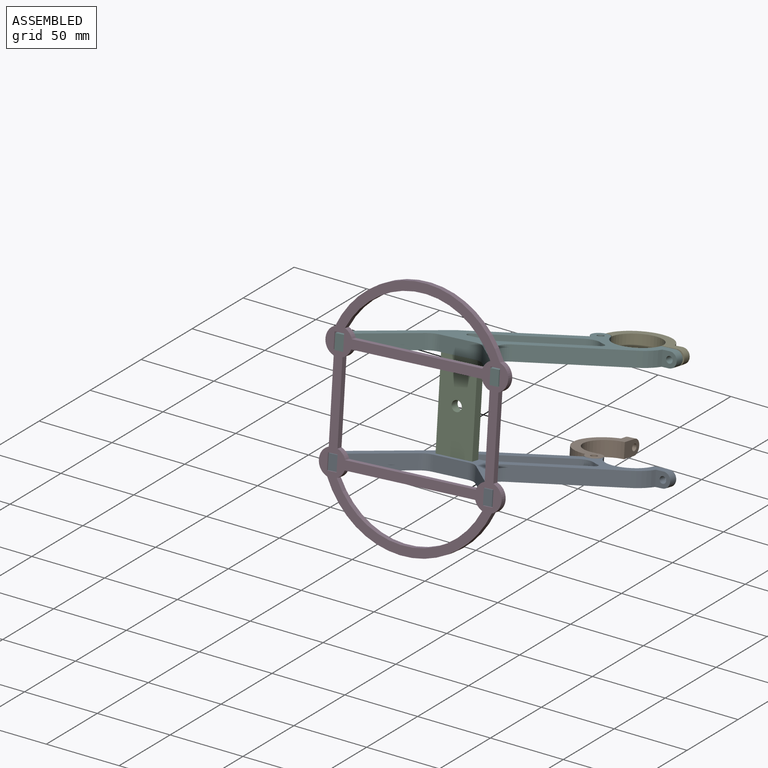
[diagram: assembled view]
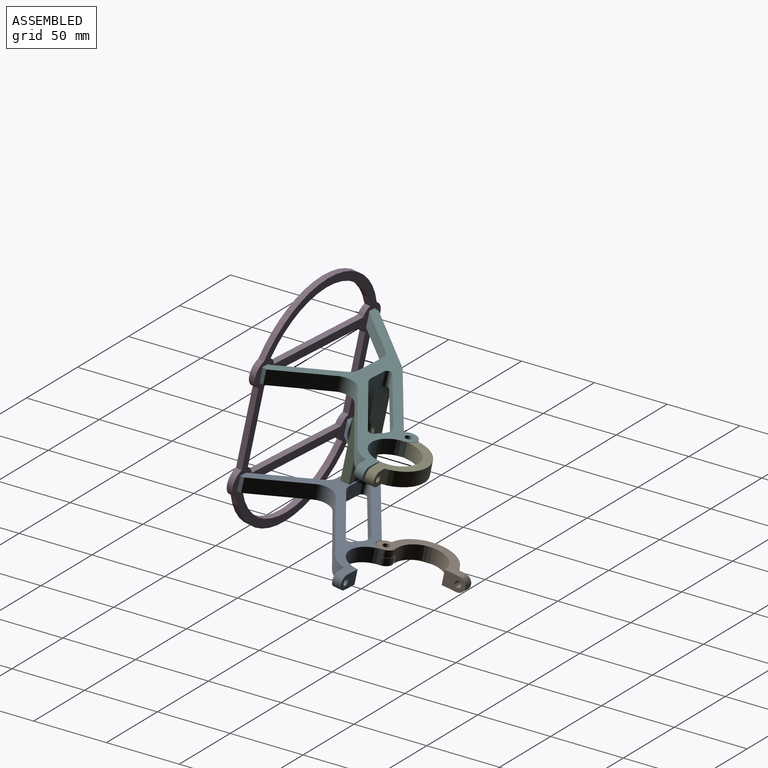
[diagram: assembled view, second angle]
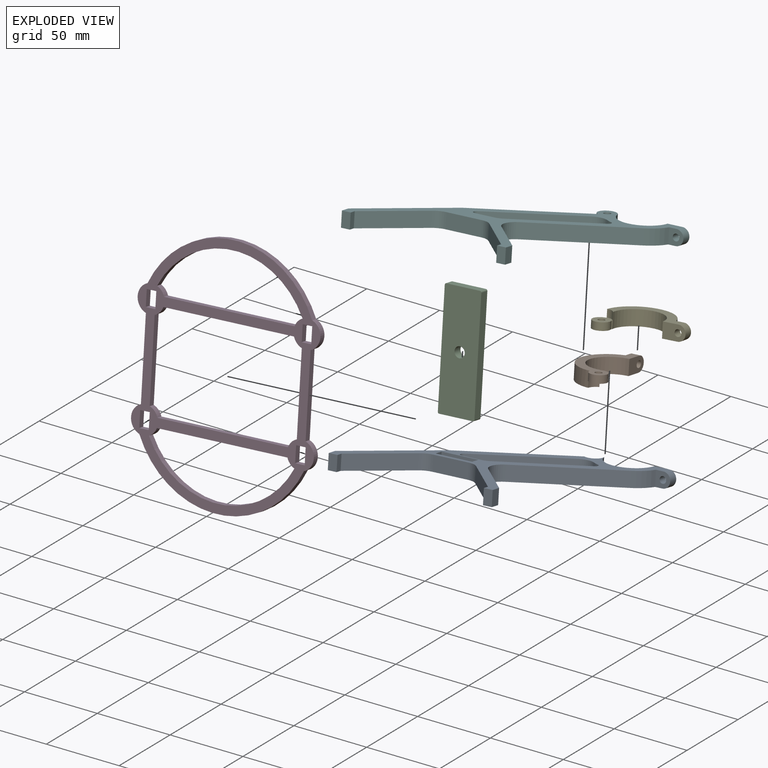
[diagram: exploded view]
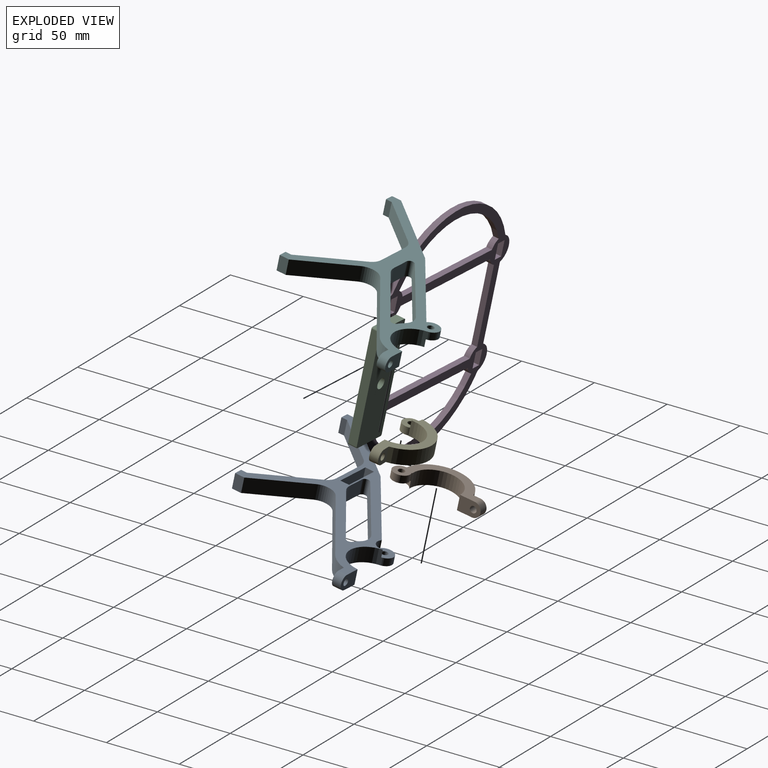
[diagram: exploded view, second angle]
ASSEMBLY  parts=6 mates=5
PART A: 42 faces, bbox 162.3x110x10 mm
  f0: cylinder r=6mm len=11.77mm, axis (0,0,-1), area 117.4mm2, adj f15,f16,f32,f41
  f1: cylinder r=2.25mm len=5mm, axis (0,0,-1), area 70.7mm2, adj f32,f41
  f2: plane 15.17x10mm, normal (0,1,0), area 125mm2, adj f15,f31,f32,f33,f34
  f3: plane 12.88x10mm, normal (0,1,0), area 128.8mm2, adj f4,f29,f31,f32
  f4: cylinder r=2.5mm len=10mm, axis (0,0,-1), area 63mm2, adj f3,f5,f31,f32
  f5: plane 51.81x36.97mm, normal (0.58,-0.81,0), area 636.4mm2, adj f4,f6,f31,f32
  f6: cylinder r=10mm len=11.46mm, axis (0,0,-1), area 122.1mm2, adj f5,f7,f31,f32
  f7: cylinder r=22.3mm len=10mm, axis (0,0,-1), area 47.4mm2, adj f6,f8,f31,f32
  f8: cylinder r=2.5mm len=10mm, axis (0,0,-1), area 53.7mm2, adj f7,f9,f31,f32
  f9: plane 47.87x33.21mm, normal (-0.57,0.82,0), area 582.6mm2, adj f8,f29,f31,f32
  f10: plane 30.19x28.13mm, normal (0.73,0.68,0), area 412.6mm2, adj f11,f30,f31,f32
  f11: cylinder r=10mm len=15.03mm, axis (0,0,-1), area 171.4mm2, adj f10,f12,f31,f32
  f12: plane 58.15x40.34mm, normal (0.57,-0.82,0), area 707.7mm2, adj f11,f13,f31,f32
  f13: cylinder r=22mm len=12.08mm, axis (0,0,-1), area 151.4mm2, adj f12,f14,f31,f32
  f14: plane 10x10mm, normal (0,-1,0), area 73.4mm2, adj f13,f31,f32,f33,f34
  f15: cylinder r=16mm len=31.39mm, axis (0,0,-1), area 458.5mm2, adj f0,f2,f31,f32,f40
  f16: plane 61.63x43.98mm, normal (-0.58,0.81,0), area 757.2mm2, adj f0,f17,f31,f32,f40
  f17: cylinder r=5mm len=10mm, axis (0,0,-1), area 10mm2, adj f16,f18,f31,f32
  f18: plane 47.8x44.54mm, normal (-0.73,0.68,0), area 653.4mm2, adj f17,f19,f31,f32
  f19: plane 10x6.36mm, normal (-1,0,0), area 63.6mm2, adj f18,f20,f31,f32
  f20: plane 10x6mm, normal (0,-1,0), area 60mm2, adj f19,f21,f31,f32
  f21: plane 10x4mm, normal (1,0,0), area 40mm2, adj f20,f22,f31,f32
  f22: plane 32.82x30.58mm, normal (0.73,-0.68,0), area 448.5mm2, adj f21,f23,f31,f32
  f23: cylinder r=10mm len=10mm, axis (0,0,-1), area 82.1mm2, adj f22,f24,f31,f32
  f24: plane 24.21x10mm, normal (0,-1,0), area 242.1mm2, adj f23,f25,f31,f32
  f25: cylinder r=10mm len=10mm, axis (0,0,-1), area 82.1mm2, adj f24,f26,f31,f32
  f26: plane 32.82x30.58mm, normal (-0.73,-0.68,0), area 448.5mm2, adj f25,f27,f31,f32
  f27: plane 10x4mm, normal (-1,0,0), area 40mm2, adj f26,f28,f31,f32
  f28: plane 10x6mm, normal (0,-1,0), area 60mm2, adj f27,f30,f31,f32
  f29: cylinder r=10mm len=10mm, axis (0,0,-1), area 60.7mm2, adj f3,f9,f31,f32
  f30: plane 10x6.36mm, normal (1,0,0), area 63.6mm2, adj f10,f28,f31,f32
  f31: plane 157.26x110mm, normal (0,0,1), area 2203.6mm2, adj f2,f3,f4,f5,f6,f7,f8,f9
  f32: plane 157.26x110mm, normal (0,0,-1), area 2450.8mm2, adj f0,f1,f2,f3,f4,f5,f6,f7
  f33: cylinder r=2.25mm len=6mm, axis (0,-1,0), area 84.8mm2, adj f2,f14
  f34: cylinder r=5mm len=10mm, axis (0,-1,0), area 94.2mm2, adj f2,f14,f31,f32
  f35: plane 8x6mm, normal (1,0,0), area 48mm2, adj f31,f36,f38,f39
  f36: plane 25x8mm, normal (0,1,0), area 200mm2, adj f31,f35,f37,f39
  f37: plane 8x6mm, normal (-1,0,0), area 48mm2, adj f31,f36,f38,f39
  f38: plane 25x8mm, normal (0,-1,0), area 200mm2, adj f31,f35,f37,f39
  f39: plane 25x6mm, normal (0,0,1), area 150mm2, adj f35,f36,f37,f38
  f40: cylinder r=6mm len=9mm, axis (0,0,1), area 71.1mm2, adj f15,f16,f31,f41
  f41: plane 12x12mm, normal (0,0,1), area 97.2mm2, adj f0,f1,f40
PART B: 13 faces, bbox 58x33.7x10 mm
  f0: plane 15.11x10mm, normal (0.09,-1,0), area 125mm2, adj f1,f5,f8,f11,f12
  f1: plane 53x33.69mm, normal (0,0,1), area 469mm2, adj f0,f2,f3,f4,f5,f6,f7,f12
  f2: plane 5x0.44mm, normal (0.49,-0.87,0), area 2.5mm2, adj f1,f3,f5,f10
  f3: cylinder r=5.75mm len=11.5mm, axis (0,0,-1), area 146.2mm2, adj f1,f2,f7,f10
  f4: cylinder r=2.25mm len=5mm, axis (0,0,-1), area 70.7mm2, adj f1,f10
  f5: cylinder r=16mm len=31.94mm, axis (0,0,-1), area 517.5mm2, adj f0,f1,f2,f8,f9
  f6: plane 10x9.96mm, normal (-0.09,1,0), area 73.4mm2, adj f1,f7,f8,f11,f12
  f7: cylinder r=22mm len=42.56mm, axis (0,0,-1), area 611.2mm2, adj f1,f3,f6,f8,f9,f10
  f8: plane 48.07x24.87mm, normal (0,0,-1), area 377.5mm2, adj f0,f5,f6,f7,f9,f12
  f9: cylinder r=6.25mm len=6.26mm, axis (0,0,-1), area 37.1mm2, adj f5,f7,f8,f10
  f10: plane 12x11.5mm, normal (0,0,-1), area 91.5mm2, adj f2,f3,f4,f7,f9
  f11: cylinder r=2.25mm len=6.37mm, axis (-0.09,1,0), area 84.8mm2, adj f0,f6
  f12: cylinder r=5mm len=10mm, axis (-0.09,1,0), area 94.2mm2, adj f0,f1,f6,f8
PART C: 11 faces, bbox 76x25x6 mm
  f0: plane 74x6mm, normal (0,1,0), area 444mm2, adj f5,f6,f7,f10
  f1: plane 23x6mm, normal (-1,0,0), area 138mm2, adj f5,f6,f7,f8
  f2: plane 74x6mm, normal (0,-1,0), area 444mm2, adj f5,f6,f8,f9
  f3: cylinder r=3.5mm len=7mm, axis (0,0,-1), area 131.9mm2, adj f5,f6
  f4: plane 23x6mm, normal (1,0,0), area 138mm2, adj f5,f6,f9,f10
  f5: plane 76x25mm, normal (0,0,1), area 1860.7mm2, adj f0,f1,f2,f3,f4,f7,f8,f9
  f6: plane 76x25mm, normal (0,0,-1), area 1860.7mm2, adj f0,f1,f2,f3,f4,f7,f8,f9
  f7: cylinder r=1mm len=6mm, axis (0,0,1), area 9.4mm2, adj f0,f1,f5,f6
  f8: cylinder r=1mm len=6mm, axis (0,0,-1), area 9.4mm2, adj f1,f2,f5,f6
  f9: cylinder r=1mm len=6mm, axis (0,0,1), area 9.4mm2, adj f2,f4,f5,f6
  f10: cylinder r=1mm len=6mm, axis (0,0,-1), area 9.4mm2, adj f0,f4,f5,f6
PART D: 42 faces, bbox 160x124.8x4 mm
  f0: plane 10.5x4mm, normal (0,1,0), area 42mm2, adj f1,f12,f13,f14
  f1: plane 6.5x4mm, normal (1,0,0), area 26mm2, adj f0,f2,f13,f14
  f2: plane 10.5x4mm, normal (0,-1,0), area 42mm2, adj f1,f12,f13,f14
  f3: plane 53.16x4mm, normal (0,1,0), area 212.6mm2, adj f4,f13,f14,f18
  f4: cylinder r=9.17mm len=17.34mm, axis (0,0,-1), area 90.8mm2, adj f3,f5,f13,f14
  f5: cylinder r=61.89mm len=112.5mm, axis (0,0,-1), area 564.7mm2, adj f4,f13,f14,f30
  f6: cylinder r=55.89mm len=99.37mm, axis (0,0,-1), area 489.7mm2, adj f7,f13,f14,f31
  f7: cylinder r=9.17mm len=5.45mm, axis (0,0,-1), area 30.8mm2, adj f6,f8,f13,f14
  f8: plane 89.16x4mm, normal (-1,0,0), area 356.6mm2, adj f7,f13,f14,f31
  f9: plane 89.16x4mm, normal (1,0,0), area 356.6mm2, adj f10,f13,f14,f32
  f10: cylinder r=9.17mm len=5.67mm, axis (0,0,-1), area 33.2mm2, adj f9,f11,f13,f14
  f11: plane 53.16x4mm, normal (0,-1,0), area 212.6mm2, adj f10,f13,f14,f24
  f12: plane 6.5x4mm, normal (-1,0,0), area 26mm2, adj f0,f2,f13,f14
  f13: plane 160x124.85mm, normal (0,0,1), area 4047.3mm2, adj f0,f1,f2,f3,f4,f5,f6,f7
  f14: plane 160x124.85mm, normal (0,0,-1), area 4047.3mm2, adj f0,f1,f2,f3,f4,f5,f6,f7
  f15: plane 10.5x4mm, normal (0,1,0), area 42mm2, adj f13,f14,f16,f25
  f16: plane 6.5x4mm, normal (-1,0,0), area 26mm2, adj f13,f14,f15,f17
  f17: plane 10.5x4mm, normal (0,-1,0), area 42mm2, adj f13,f14,f16,f25
  f18: cylinder r=9.17mm len=17.34mm, axis (0,0,-1), area 90.8mm2, adj f3,f13,f14,f19
  f19: cylinder r=61.89mm len=112.5mm, axis (0,0,-1), area 564.7mm2, adj f13,f14,f18,f38
  f20: cylinder r=55.89mm len=99.37mm, axis (0,0,-1), area 489.7mm2, adj f13,f14,f21,f39
  f21: cylinder r=9.17mm len=5.45mm, axis (0,0,-1), area 30.8mm2, adj f13,f14,f20,f22
  f22: plane 89.16x4mm, normal (1,0,0), area 356.6mm2, adj f13,f14,f21,f39
  f23: plane 89.16x4mm, normal (-1,0,0), area 356.6mm2, adj f13,f14,f24,f40
  f24: cylinder r=9.17mm len=5.67mm, axis (0,0,-1), area 33.2mm2, adj f11,f13,f14,f23
  f25: plane 6.5x4mm, normal (1,0,0), area 26mm2, adj f13,f14,f15,f17
  f26: plane 10.5x4mm, normal (0,-1,0), area 42mm2, adj f13,f14,f27,f34
  f27: plane 6.5x4mm, normal (1,0,0), area 26mm2, adj f13,f14,f26,f28
  f28: plane 10.5x4mm, normal (0,1,0), area 42mm2, adj f13,f14,f27,f34
  f29: plane 53.16x4mm, normal (0,-1,0), area 212.6mm2, adj f13,f14,f30,f38
  f30: cylinder r=9.17mm len=17.34mm, axis (0,0,-1), area 90.8mm2, adj f5,f13,f14,f29
  f31: cylinder r=9.17mm len=5.45mm, axis (0,0,-1), area 30.8mm2, adj f6,f8,f13,f14
  f32: cylinder r=9.17mm len=5.67mm, axis (0,0,-1), area 33.2mm2, adj f9,f13,f14,f33
  f33: plane 53.16x4mm, normal (0,1,0), area 212.6mm2, adj f13,f14,f32,f40
  f34: plane 6.5x4mm, normal (-1,0,0), area 26mm2, adj f13,f14,f26,f28
  f35: plane 10.5x4mm, normal (0,-1,0), area 42mm2, adj f13,f14,f36,f41
  f36: plane 6.5x4mm, normal (-1,0,0), area 26mm2, adj f13,f14,f35,f37
  f37: plane 10.5x4mm, normal (0,1,0), area 42mm2, adj f13,f14,f36,f41
  f38: cylinder r=9.17mm len=17.34mm, axis (0,0,-1), area 90.8mm2, adj f13,f14,f19,f29
  f39: cylinder r=9.17mm len=5.45mm, axis (0,0,-1), area 30.8mm2, adj f13,f14,f20,f22
  f40: cylinder r=9.17mm len=5.67mm, axis (0,0,-1), area 33.2mm2, adj f13,f14,f23,f33
  f41: plane 6.5x4mm, normal (1,0,0), area 26mm2, adj f13,f14,f35,f37
PART E: 13 faces, bbox 58x33.7x10 mm
  f0: plane 15.11x10mm, normal (0.09,-1,0), area 125mm2, adj f1,f5,f8,f11,f12
  f1: plane 53x33.69mm, normal (0,0,-1), area 469mm2, adj f0,f2,f3,f4,f5,f6,f7,f12
  f2: plane 5x0.44mm, normal (0.49,-0.87,0), area 2.5mm2, adj f1,f3,f5,f10
  f3: cylinder r=5.75mm len=11.5mm, axis (0,0,1), area 146.2mm2, adj f1,f2,f7,f10
  f4: cylinder r=2.25mm len=5mm, axis (0,0,1), area 70.7mm2, adj f1,f10
  f5: cylinder r=16mm len=31.94mm, axis (0,0,1), area 517.5mm2, adj f0,f1,f2,f8,f9
  f6: plane 10x9.96mm, normal (-0.09,1,0), area 73.4mm2, adj f1,f7,f8,f11,f12
  f7: cylinder r=22mm len=42.56mm, axis (0,0,1), area 611.2mm2, adj f1,f3,f6,f8,f9,f10
  f8: plane 48.07x24.87mm, normal (0,0,1), area 377.5mm2, adj f0,f5,f6,f7,f9,f12
  f9: cylinder r=6.25mm len=6.26mm, axis (0,0,1), area 37.1mm2, adj f5,f7,f8,f10
  f10: plane 12x11.5mm, normal (0,0,1), area 91.5mm2, adj f2,f3,f4,f7,f9
  f11: cylinder r=2.25mm len=6.37mm, axis (-0.09,1,0), area 84.8mm2, adj f0,f6
  f12: cylinder r=5mm len=10mm, axis (-0.09,1,0), area 94.2mm2, adj f0,f1,f6,f8
PART F: 42 faces, bbox 162.3x110x10 mm
  f0: cylinder r=6mm len=11.77mm, axis (0,0,1), area 117.4mm2, adj f15,f16,f32,f41
  f1: cylinder r=2.25mm len=5mm, axis (0,0,1), area 70.7mm2, adj f32,f41
  f2: plane 15.17x10mm, normal (0,1,0), area 125mm2, adj f15,f31,f32,f33,f34
  f3: plane 12.88x10mm, normal (0,1,0), area 128.8mm2, adj f4,f29,f31,f32
  f4: cylinder r=2.5mm len=10mm, axis (0,0,1), area 63mm2, adj f3,f5,f31,f32
  f5: plane 51.81x36.97mm, normal (0.58,-0.81,0), area 636.4mm2, adj f4,f6,f31,f32
  f6: cylinder r=10mm len=11.46mm, axis (0,0,1), area 122.1mm2, adj f5,f7,f31,f32
  f7: cylinder r=22.3mm len=10mm, axis (0,0,1), area 47.4mm2, adj f6,f8,f31,f32
  f8: cylinder r=2.5mm len=10mm, axis (0,0,1), area 53.7mm2, adj f7,f9,f31,f32
  f9: plane 47.87x33.21mm, normal (-0.57,0.82,0), area 582.6mm2, adj f8,f29,f31,f32
  f10: plane 30.19x28.13mm, normal (0.73,0.68,0), area 412.6mm2, adj f11,f30,f31,f32
  f11: cylinder r=10mm len=15.03mm, axis (0,0,1), area 171.4mm2, adj f10,f12,f31,f32
  f12: plane 58.15x40.34mm, normal (0.57,-0.82,0), area 707.7mm2, adj f11,f13,f31,f32
  f13: cylinder r=22mm len=12.08mm, axis (0,0,1), area 151.4mm2, adj f12,f14,f31,f32
  f14: plane 10x10mm, normal (0,-1,0), area 73.4mm2, adj f13,f31,f32,f33,f34
  f15: cylinder r=16mm len=31.39mm, axis (0,0,1), area 458.5mm2, adj f0,f2,f31,f32,f40
  f16: plane 61.63x43.98mm, normal (-0.58,0.81,0), area 757.2mm2, adj f0,f17,f31,f32,f40
  f17: cylinder r=5mm len=10mm, axis (0,0,1), area 10mm2, adj f16,f18,f31,f32
  f18: plane 47.8x44.54mm, normal (-0.73,0.68,0), area 653.4mm2, adj f17,f19,f31,f32
  f19: plane 10x6.36mm, normal (-1,0,0), area 63.6mm2, adj f18,f20,f31,f32
  f20: plane 10x6mm, normal (0,-1,0), area 60mm2, adj f19,f21,f31,f32
  f21: plane 10x4mm, normal (1,0,0), area 40mm2, adj f20,f22,f31,f32
  f22: plane 32.82x30.58mm, normal (0.73,-0.68,0), area 448.5mm2, adj f21,f23,f31,f32
  f23: cylinder r=10mm len=10mm, axis (0,0,1), area 82.1mm2, adj f22,f24,f31,f32
  f24: plane 24.21x10mm, normal (0,-1,0), area 242.1mm2, adj f23,f25,f31,f32
  f25: cylinder r=10mm len=10mm, axis (0,0,1), area 82.1mm2, adj f24,f26,f31,f32
  f26: plane 32.82x30.58mm, normal (-0.73,-0.68,0), area 448.5mm2, adj f25,f27,f31,f32
  f27: plane 10x4mm, normal (-1,0,0), area 40mm2, adj f26,f28,f31,f32
  f28: plane 10x6mm, normal (0,-1,0), area 60mm2, adj f27,f30,f31,f32
  f29: cylinder r=10mm len=10mm, axis (0,0,1), area 60.7mm2, adj f3,f9,f31,f32
  f30: plane 10x6.36mm, normal (1,0,0), area 63.6mm2, adj f10,f28,f31,f32
  f31: plane 157.26x110mm, normal (0,0,-1), area 2203.6mm2, adj f2,f3,f4,f5,f6,f7,f8,f9
  f32: plane 157.26x110mm, normal (0,0,1), area 2450.8mm2, adj f0,f1,f2,f3,f4,f5,f6,f7
  f33: cylinder r=2.25mm len=6mm, axis (0,-1,0), area 84.8mm2, adj f2,f14
  f34: cylinder r=5mm len=10mm, axis (0,-1,0), area 94.2mm2, adj f2,f14,f31,f32
  f35: plane 8x6mm, normal (1,0,0), area 48mm2, adj f31,f36,f38,f39
  f36: plane 25x8mm, normal (0,1,0), area 200mm2, adj f31,f35,f37,f39
  f37: plane 8x6mm, normal (-1,0,0), area 48mm2, adj f31,f36,f38,f39
  f38: plane 25x8mm, normal (0,-1,0), area 200mm2, adj f31,f35,f37,f39
  f39: plane 25x6mm, normal (0,0,-1), area 150mm2, adj f35,f36,f37,f38
  f40: cylinder r=6mm len=9mm, axis (0,0,-1), area 71.1mm2, adj f15,f16,f31,f41
  f41: plane 12x12mm, normal (0,0,-1), area 97.2mm2, adj f0,f1,f40
PLACE A rot(axis=(-0.95,-0.31,0.03),10.7deg) t=(-39.58,-38.3,-40.98)mm
PLACE B rot(axis=(-0.12,0.06,0.99),86.8deg) t=(185.85,-50.18,-25.37)mm
PLACE C rot(axis=(-0.59,-0.62,-0.52),127.7deg) t=(14.26,13.7,-11.43)mm fixed
PLACE D rot(axis=(-0.59,-0.62,-0.52),127.7deg) t=(14.25,-29.57,-3.45)mm
PLACE E rot(axis=(-0.94,-0.33,-0.1),10.7deg) t=(-40.87,-60.55,-67.61)mm
PLACE F rot(axis=(-0.95,-0.31,0.03),10.7deg) t=(-37.82,-43.57,-70.46)mm
MATE revolute B.f3 <-> A.f0  axis (0.06,-0.18,-0.98) through (70.16,65.21,-52.9)mm
MATE revolute F.f0 <-> E.f3  axis (-0.06,0.18,0.98) through (66.04,77.5,15.89)mm
MATE fastened F.f39 <-> C.f4  axis (0.06,-0.18,-0.98) through (12.03,20.37,25.91)mm
MATE fastened A.f39 <-> C.f1  axis (-0.06,0.18,0.98) through (16.5,7.03,-48.78)mm
MATE fastened A.f21 <-> D.f26  axis (1,0.01,0.06) through (-33.59,-36.27,-40.98)mm
